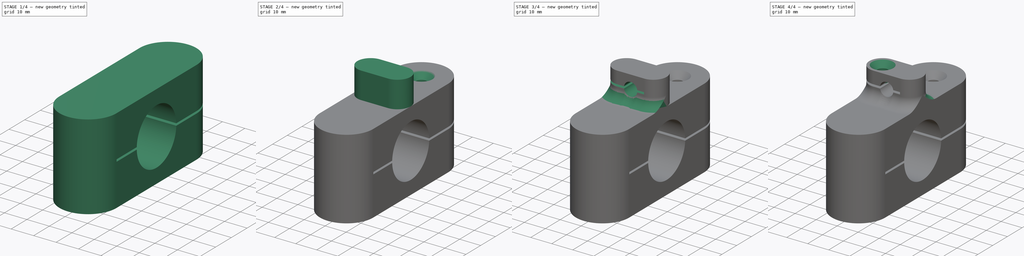
[diagram: build sequence overview — one tinted view per stage of 4, left to right]
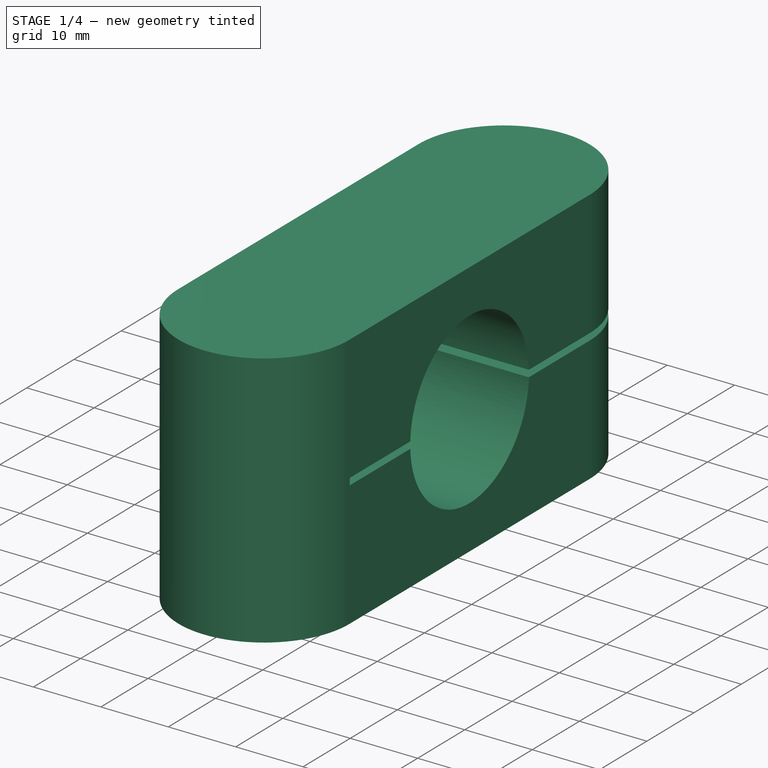
[diagram: stage 1 of 4 — iso view after this stage's code; geometry added in this stage tinted green]
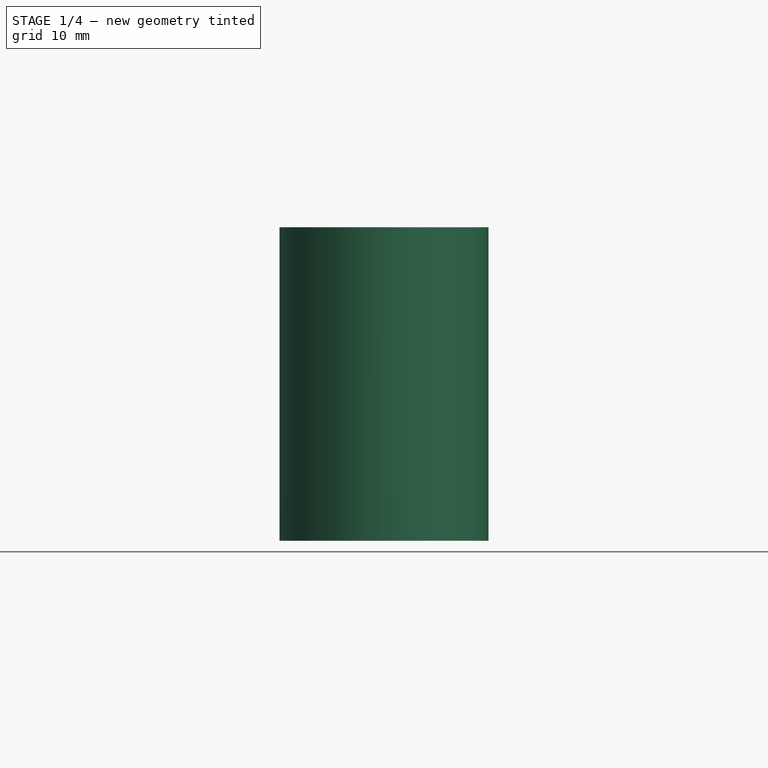
[diagram: stage 1 of 4 — front view after this stage's code; geometry added in this stage tinted green]
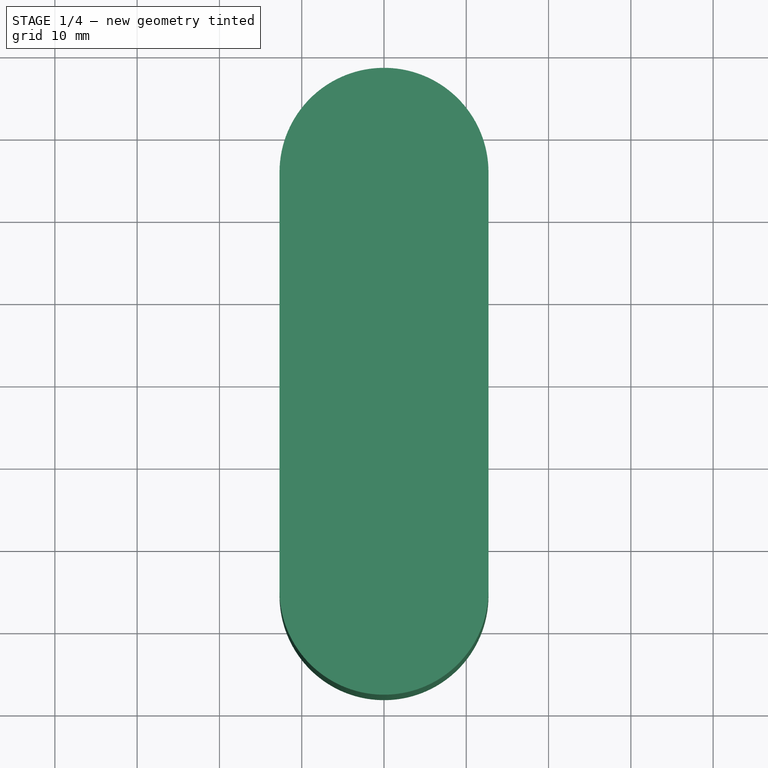
[diagram: stage 1 of 4 — top view after this stage's code; geometry added in this stage tinted green]
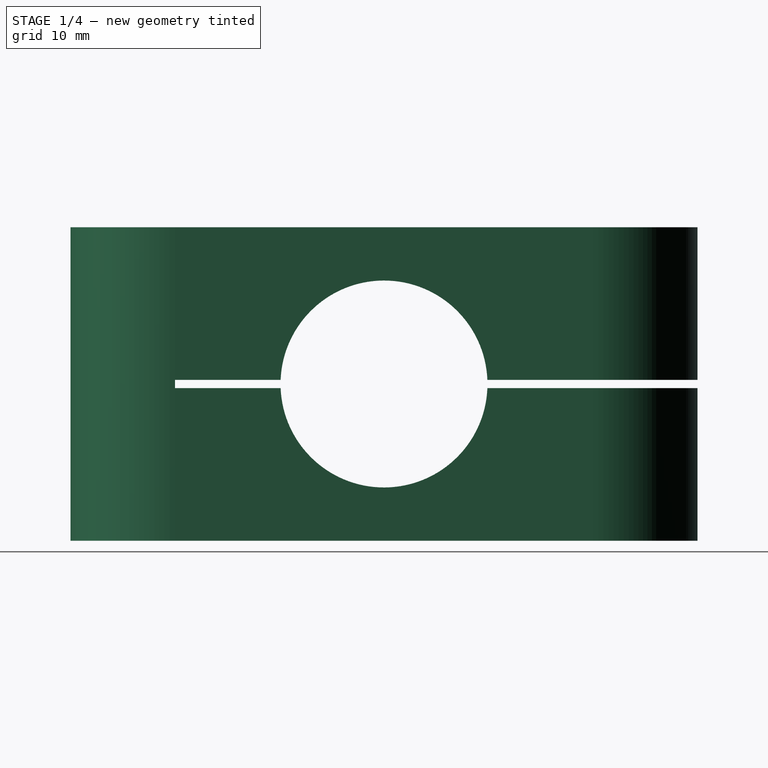
[diagram: stage 1 of 4 — right view after this stage's code; geometry added in this stage tinted green]
FCSTD DOCUMENT  (FreeCAD 0.19R24267 (Git))
Label: element_bracket
License: All rights reserved
LicenseURL: http://en.wikipedia.org/wiki/All_rights_reserved
objects: Sketcher::SketchObject×10, PartDesign::Pocket×6, PartDesign::Plane×4, PartDesign::Pad×2, PartDesign::Hole×2, PartDesign::Fillet×2, PartDesign::Body×1
note: 39 computed .brp shape members not serialized (recipe doc carries the construction recipe); baked Part::Feature solids carry a one-line shape summary decoded from their .brp

FEATURE [Sketcher::SketchObject] Sketch  label="large_dia_sketch"
  FullyConstrained = true
  MapMode = 5
  Support = -> [XY_Plane]
  sketch-geometry (8):
    g0: LineSegment StartX=-12.7 StartY=25.4 StartZ=0 EndX=-12.7 EndY=-25.4 EndZ=0
    g1: LineSegment StartX=12.7 StartY=25.4 StartZ=0 EndX=12.7 EndY=-25.4 EndZ=0
    g2: ArcOfCircle CenterX=0 CenterY=25.4 CenterZ=0 NormalX=0 NormalY=0 NormalZ=1 AngleXU=0 Radius=12.7 StartAngle=1.87333e-06 EndAngle=3.14159
    g3: ArcOfCircle CenterX=-5e-16 CenterY=-25.4 CenterZ=0 NormalX=0 NormalY=0 NormalZ=1 AngleXU=0 Radius=12.7 StartAngle=3.1416 EndAngle=6.28318
    g4: LineSegment StartX=-100.146 StartY=12.573 StartZ=0 EndX=-75 EndY=12.573 EndZ=0
    g5: LineSegment StartX=-75 StartY=12.573 StartZ=0 EndX=-75 EndY=-12.573 EndZ=0
    g6: LineSegment StartX=-75 StartY=-12.573 StartZ=0 EndX=-100.146 EndY=-12.573 EndZ=0
    g7: LineSegment StartX=-100.146 StartY=-12.573 StartZ=0 EndX=-100.146 EndY=12.573 EndZ=0
  constraints (23):
    c: Vertical(g0)
    c: Vertical(g1)
    c: Equal(g1,g0)
    c: Symmetric(g1,g0,g-1)
    c: PointOnObject(g2,g-2)
    c: Coincident(g2,g1)
    c: Coincident(g3,g1)
    c: Coincident(g3,g0)
    c: Equal(g2,g3)
    c: Tangent(g2,g0) = -1.5708
    c: DistanceX(g0,g1) = 25.4
    c: Coincident(g4,g5)
    c: Coincident(g5,g6)
    c: Coincident(g6,g7)
    c: Coincident(g7,g4)
    c: Horizontal(g4)
    c: Horizontal(g6)
    c: Vertical(g7)
    c: DistanceY(g5,g5) = 25.146
    c: Equal(g5,g4)
    c: Symmetric(g4,g5,g-1)
    c: DistanceX(g5,g-1) = 75
    c: DistanceY(g1,g1) = 50.8
FEATURE [PartDesign::Pad] Pad
  Direction = (1,1,1)
  Length = 38.1
  Length2 = 100
  Profile = -> Sketch
  Type = 0
FEATURE [PartDesign::Plane] DatumPlane
  Length = 91.1962
  MapMode = 5
  Placement = pos=(12.7,0,0) rot=(0.57735,0.57735,0.57735;2.0944rad)
  ResizeMode = 0
  Support = -> [Pad]
  Width = 90.9815
FEATURE [Sketcher::SketchObject] Sketch001
  ExternalGeometry = -> [Pad]
  FullyConstrained = true
  MapMode = 5
  Placement = pos=(12.7,0,0) rot=(0.57735,0.57735,0.57735;2.0944rad)
  Support = -> [DatumPlane]
  sketch-geometry (1):
    g0: Circle CenterX=1.18956e-05 CenterY=19.05 CenterZ=0 NormalX=0 NormalY=0 NormalZ=1 AngleXU=0 Radius=12.575
  constraints (2):
    c: Radius(g0) = 12.575
    c: Symmetric(g-3,g-4,g0)
FEATURE [PartDesign::Pocket] Pocket
  BaseFeature = -> Pad
  Length = 25.4
  Length2 = 100
  Profile = -> Sketch001
  Type = 0
FEATURE [PartDesign::Plane] DatumPlane001
  Length = 62.33
  MapMode = 5
  Placement = pos=(0,0,38.1) rot=(0,0,1;0rad)
  ResizeMode = 0
  Support = -> [Pocket]
  Width = 88.3448
FEATURE [Sketcher::SketchObject] Sketch002
  ExternalGeometry = -> [Pocket]
  FullyConstrained = true
  MapMode = 5
  Placement = pos=(12.7,0,0) rot=(0.57735,0.57735,0.57735;2.0944rad)
  Support = -> [DatumPlane]
  sketch-geometry (6):
    g0: LineSegment StartX=-25.4 StartY=19.55 StartZ=0 EndX=74.6 EndY=19.55 EndZ=0
    g1: LineSegment StartX=74.6 StartY=19.55 StartZ=0 EndX=74.6 EndY=18.55 EndZ=0
    g2: LineSegment StartX=74.6 StartY=18.55 StartZ=0 EndX=-25.4 EndY=18.55 EndZ=0
    g3: LineSegment StartX=-25.4 StartY=18.55 StartZ=0 EndX=-25.4 EndY=19.55 EndZ=0
    g4: LineSegment StartX=-25.4 StartY=19.55 StartZ=0 EndX=25.4 EndY=38.1 EndZ=0
    g5: LineSegment StartX=-25.4 StartY=18.55 StartZ=0 EndX=25.4 EndY=0 EndZ=0
  constraints (16):
    c: Coincident(g0,g1)
    c: Coincident(g1,g2)
    c: Coincident(g2,g3)
    c: Coincident(g3,g0)
    c: Horizontal(g0)
    c: Horizontal(g2)
    c: Vertical(g1)
    c: Vertical(g3)
    c: DistanceY(g1,g1) = 1
    c: Coincident(g0,g4)
    c: Coincident(g4,g-3)
    c: Coincident(g2,g5)
    c: Coincident(g5,g-3)
    c: Equal(g5,g4)
    c: DistanceX(g0,g0) = 100
    c: PointOnObject(g0,g-4)
FEATURE [PartDesign::Pocket] Pocket001
  BaseFeature = -> Pocket
  Length = 25.4
  Length2 = 100
  Profile = -> Sketch002
  Type = 0
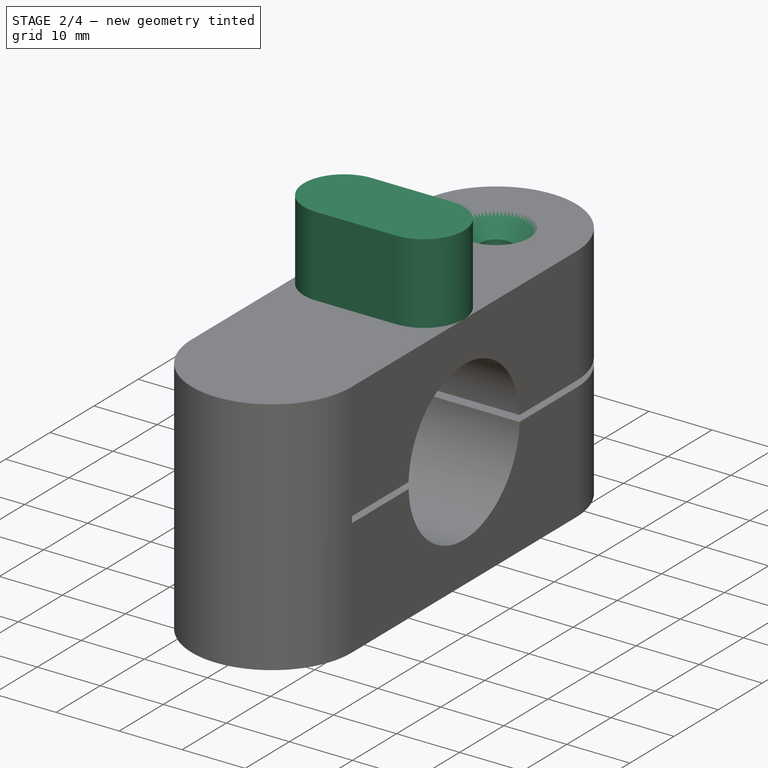
[diagram: stage 2 of 4 — iso view after this stage's code; geometry added in this stage tinted green]
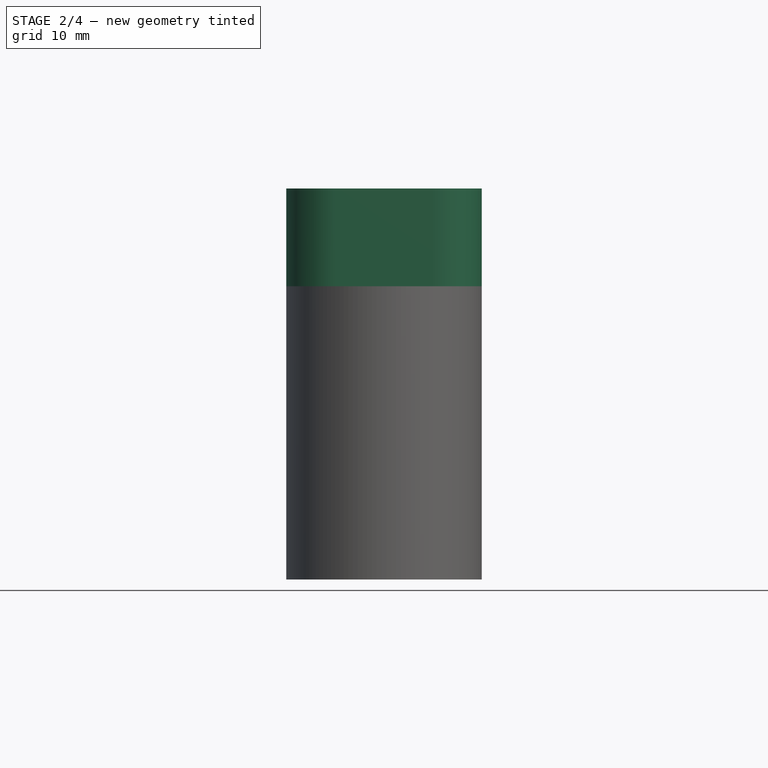
[diagram: stage 2 of 4 — front view after this stage's code; geometry added in this stage tinted green]
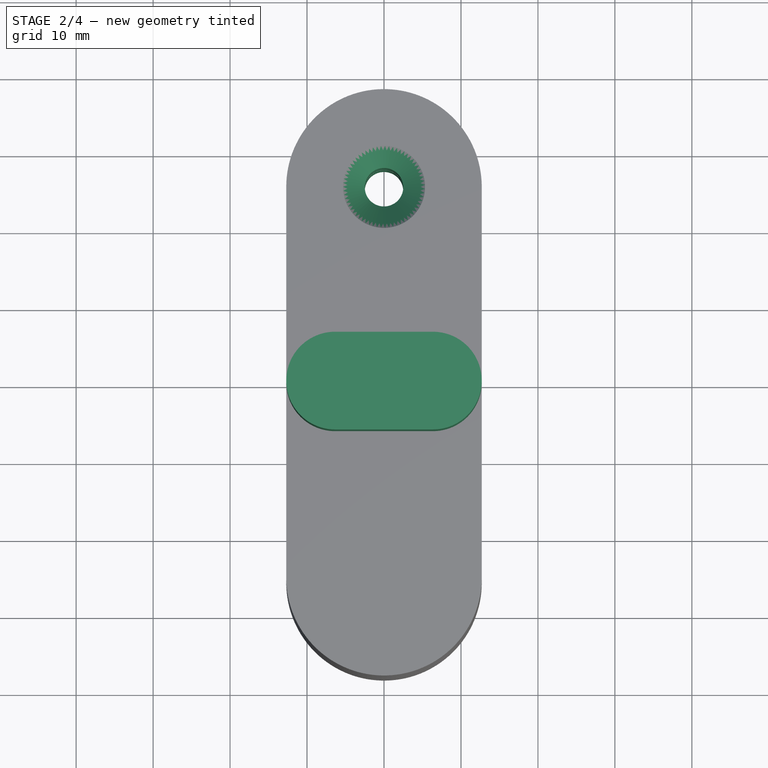
[diagram: stage 2 of 4 — top view after this stage's code; geometry added in this stage tinted green]
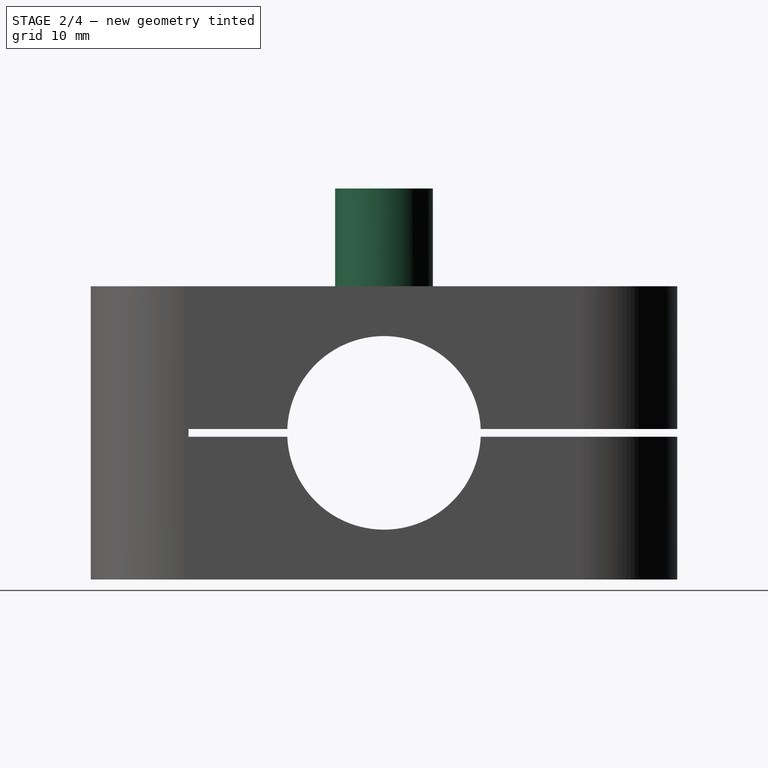
[diagram: stage 2 of 4 — right view after this stage's code; geometry added in this stage tinted green]
FEATURE [Sketcher::SketchObject] Sketch003
  ExternalGeometry = -> [Pocket001]
  FullyConstrained = true
  MapMode = 5
  Placement = pos=(0,0,38.1) rot=(0,0,1;0rad)
  Support = -> [DatumPlane001]
  sketch-geometry (1):
    g0: Circle CenterX=0 CenterY=25.4 CenterZ=0 NormalX=0 NormalY=0 NormalZ=1 AngleXU=0 Radius=5
  constraints (2):
    c: Radius(g0) = 5
    c: Coincident(g-4,g0)
FEATURE [PartDesign::Hole] Hole
  BaseFeature = -> Pocket001
  Depth = 25
  DepthType = 1
  Diameter = 5
  DrillForDepth = false
  DrillPoint = 1
  DrillPointAngle = 118
  HoleCutCountersinkAngle = 90
  HoleCutCustomValues = false
  HoleCutDepth = 2
  HoleCutDiameter = 10.67
  HoleCutType = 2
  ModelActualThread = false
  Profile = -> Sketch003
  Tapered = false
  TaperedAngle = 90
  ThreadAngle = 60
  ThreadClass = 0
  ThreadCutOffInner = 0.0343163
  ThreadCutOffOuter = 0.0686325
  ThreadDirection = 0
  ThreadFit = 0
  ThreadPitch = 0.317
  ThreadSize = 7
  ThreadType = 4
  Threaded = false
FEATURE [PartDesign::Plane] DatumPlane002
  Length = 62.33
  MapMode = 5
  Placement = pos=(0,0,0) rot=(1,0,0;3.14159rad)
  ResizeMode = 0
  Support = -> [Hole]
  Width = 88.3448
FEATURE [Sketcher::SketchObject] Sketch004
  ExternalGeometry = -> [Hole]
  FullyConstrained = true
  MapMode = 5
  Placement = pos=(0,0,0) rot=(1,0,0;3.14159rad)
  Support = -> [DatumPlane002]
  sketch-geometry (7):
    g0: LineSegment StartX=0 StartY=-20.2038 StartZ=0 EndX=-4.5 EndY=-22.8019 EndZ=0
    g1: LineSegment StartX=-4.5 StartY=-22.8019 StartZ=0 EndX=-4.5 EndY=-27.9981 EndZ=0
    g2: LineSegment StartX=-4.5 StartY=-27.9981 StartZ=0 EndX=0 EndY=-30.5961 EndZ=0
    g3: LineSegment StartX=0 StartY=-30.5961 StartZ=0 EndX=4.5 EndY=-27.9981 EndZ=0
    g4: LineSegment StartX=4.5 StartY=-27.9981 StartZ=0 EndX=4.5 EndY=-22.8019 EndZ=0
    g5: LineSegment StartX=4.5 StartY=-22.8019 StartZ=0 EndX=0 EndY=-20.2038 EndZ=0
    g6: Circle CenterX=0 CenterY=-25.4 CenterZ=0 NormalX=0 NormalY=0 NormalZ=1 AngleXU=0 Radius=5.19615
  constraints (16):
    c: Coincident(g0,g1)
    c: Coincident(g1,g2)
    c: Coincident(g2,g3)
    c: Coincident(g3,g4)
    c: Coincident(g4,g5)
    c: Coincident(g5,g0)
    c: Equal(g0, g1-g5) x5
    c: PointOnObject(g0,g6)
    c: PointOnObject(g1,g6)
    c: PointOnObject(g2,g6)
    c: PointOnObject(g3,g6)
    c: PointOnObject(g4,g6)
    c: PointOnObject(g5,g6)
    c: Coincident(g6,g-3)
    c: PointOnObject(g5,g-2)
    c: DistanceX(g0,g4) = 9
FEATURE [PartDesign::Pocket] Pocket002
  BaseFeature = -> Hole
  Length = 5
  Length2 = 100
  Profile = -> Sketch004
  Type = 0
FEATURE [Sketcher::SketchObject] Sketch005
  ExternalGeometry = -> [Hole]
  FullyConstrained = true
  MapMode = 5
  Placement = pos=(0,0,38.1) rot=(0,0,1;0rad)
  Support = -> [DatumPlane001]
  sketch-geometry (6):
    g0: LineSegment StartX=-6.35 StartY=6.35 StartZ=0 EndX=6.35 EndY=6.35 EndZ=0
    g1: LineSegment StartX=-6.35 StartY=-6.35 StartZ=0 EndX=6.35 EndY=-6.35 EndZ=0
    g2: LineSegment StartX=-12.7 StartY=25.4 StartZ=0 EndX=6.35 EndY=6.35 EndZ=0
    g3: LineSegment StartX=12.7 StartY=-25.4 StartZ=0 EndX=-6.35 EndY=-6.35 EndZ=0
    g4: ArcOfCircle CenterX=-6.35 CenterY=0 CenterZ=0 NormalX=0 NormalY=0 NormalZ=1 AngleXU=0 Radius=6.35 StartAngle=1.5708 EndAngle=4.71239
    g5: ArcOfCircle CenterX=6.35 CenterY=-3e-16 CenterZ=0 NormalX=0 NormalY=0 NormalZ=1 AngleXU=0 Radius=6.35 StartAngle=4.71239 EndAngle=7.85398
  constraints (16):
    c: Horizontal(g0)
    c: Horizontal(g1)
    c: Equal(g1,g0)
    c: Vertical(g0,g1)
    c: DistanceY(g1,g0) = 12.7
    c: Coincident(g-4,g2)
    c: Coincident(g2,g0)
    c: Coincident(g-3,g3)
    c: Coincident(g3,g1)
    c: Coincident(g4,g1)
    c: Coincident(g5,g1)
    c: Tangent(g5,g0) = 1.5708
    c: Tangent(g4,g0) = 1.5708
    c: DistanceX(g0,g0) = 12.7
    c: Equal(g2,g3)
    c: PointOnObject(g4,g-1)
FEATURE [PartDesign::Pad] Pad001
  BaseFeature = -> Pocket002
  Direction = (1,1,1)
  Length = 12.7
  Length2 = 100
  Profile = -> Sketch005
  Type = 0
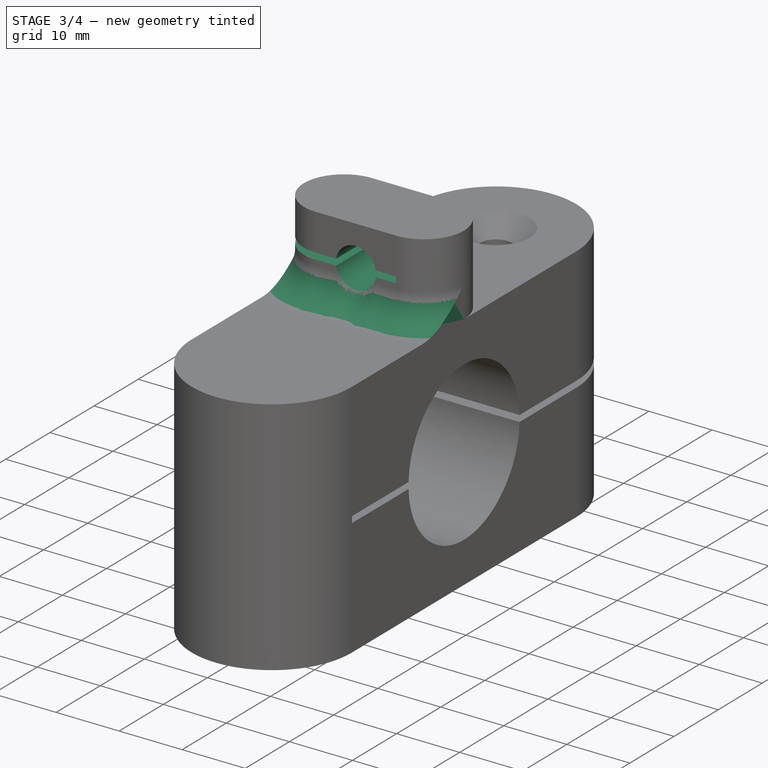
[diagram: stage 3 of 4 — iso view after this stage's code; geometry added in this stage tinted green]
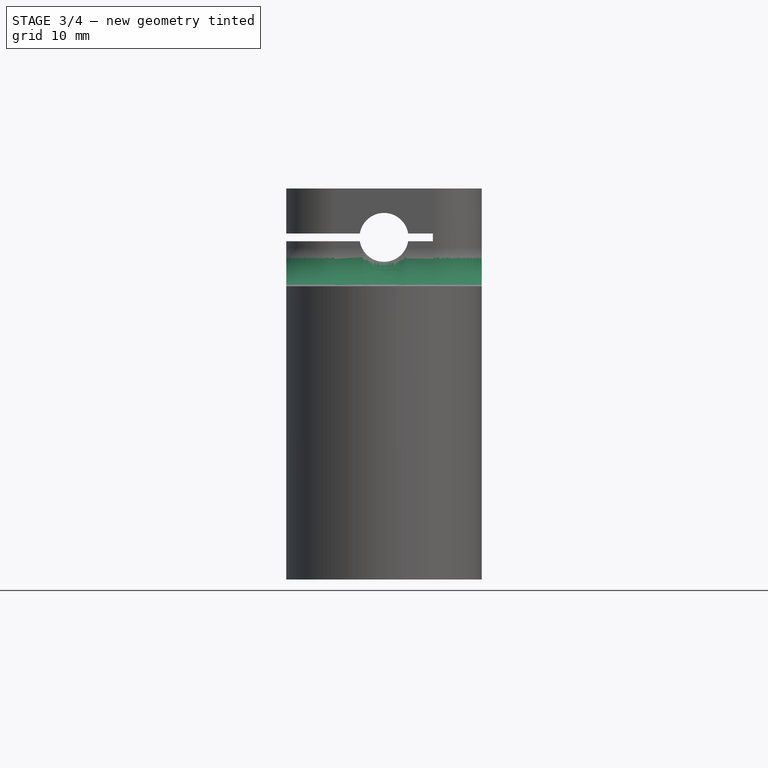
[diagram: stage 3 of 4 — front view after this stage's code; geometry added in this stage tinted green]
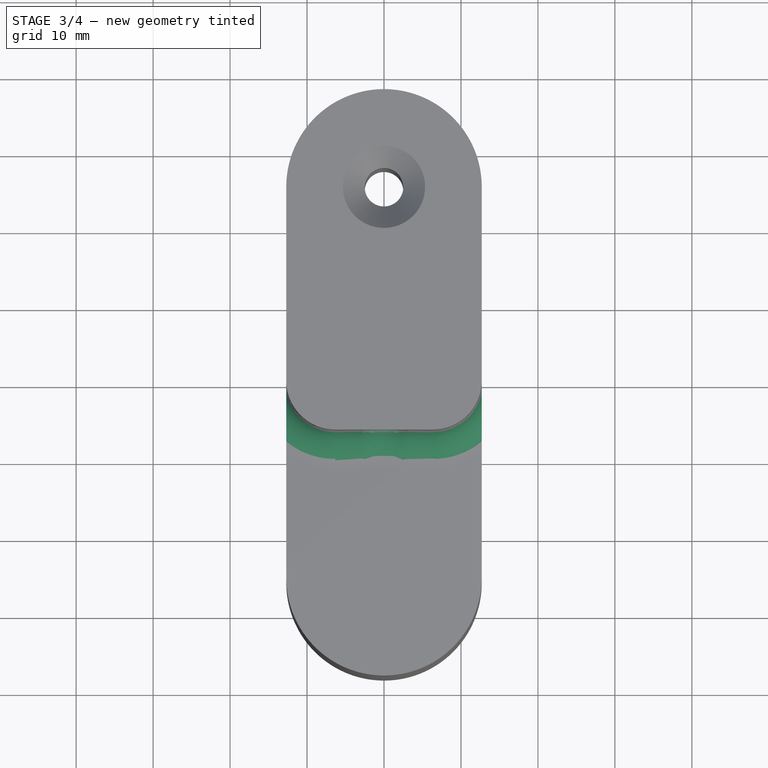
[diagram: stage 3 of 4 — top view after this stage's code; geometry added in this stage tinted green]
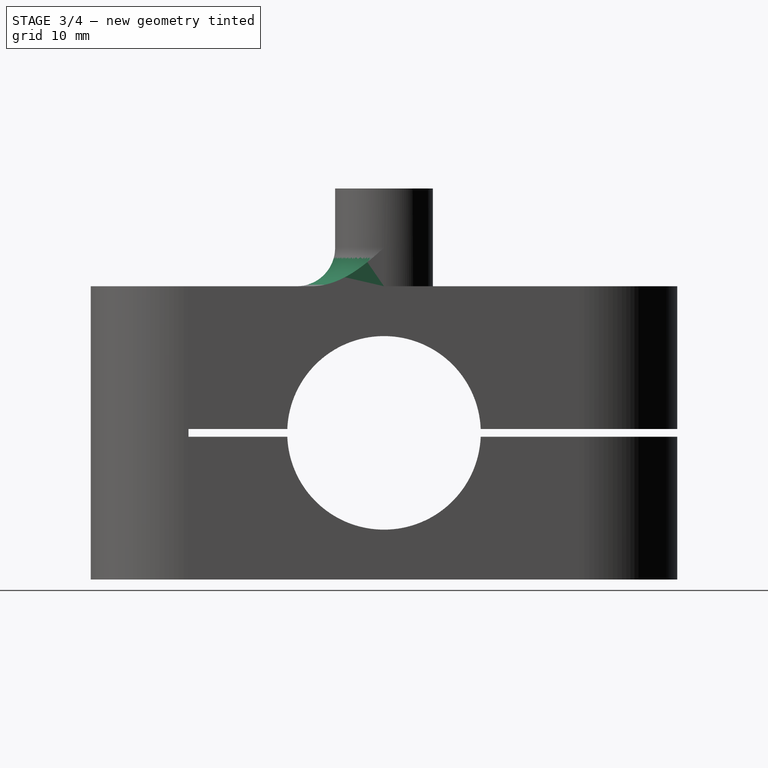
[diagram: stage 3 of 4 — right view after this stage's code; geometry added in this stage tinted green]
FEATURE [PartDesign::Plane] DatumPlane003
  Length = 62.3126
  MapMode = 5
  Placement = pos=(0,-6.35,0) rot=(1,0,0;1.5708rad)
  ResizeMode = 0
  Support = -> [Pad001]
  Width = 88.1126
FEATURE [Sketcher::SketchObject] Sketch006
  ExternalGeometry = -> [Pad001]
  FullyConstrained = true
  MapMode = 5
  Placement = pos=(0,-6.35,0) rot=(1,0,0;1.5708rad)
  Support = -> [DatumPlane003]
  sketch-geometry (1):
    g0: Circle CenterX=8.8771e-12 CenterY=44.45 CenterZ=0 NormalX=0 NormalY=0 NormalZ=1 AngleXU=0 Radius=3.175
  constraints (2):
    c: Radius(g0) = 3.175
    c: Symmetric(g-3,g-4,g0)
FEATURE [PartDesign::Pocket] Pocket003
  BaseFeature = -> Pad001
  Length = 12.7
  Length2 = 100
  Profile = -> Sketch006
  Type = 0
FEATURE [Sketcher::SketchObject] Sketch007
  ExternalGeometry = -> [Pocket003]
  FullyConstrained = true
  MapMode = 5
  Placement = pos=(0,-6.35,0) rot=(1,0,0;1.5708rad)
  Support = -> [DatumPlane003]
  sketch-geometry (6):
    g0: LineSegment StartX=-13.65 StartY=44.95 StartZ=0 EndX=6.35 EndY=44.95 EndZ=0
    g1: LineSegment StartX=6.35 StartY=44.95 StartZ=0 EndX=6.35 EndY=43.95 EndZ=0
    g2: LineSegment StartX=6.35 StartY=43.95 StartZ=0 EndX=-13.65 EndY=43.95 EndZ=0
    g3: LineSegment StartX=-13.65 StartY=43.95 StartZ=0 EndX=-13.65 EndY=44.95 EndZ=0
    g4: LineSegment StartX=-6.35 StartY=50.8 StartZ=0 EndX=6.35 EndY=44.95 EndZ=0
    g5: LineSegment StartX=6.35 StartY=43.95 StartZ=0 EndX=-6.35 EndY=38.1 EndZ=0
  constraints (16):
    c: Coincident(g0,g1)
    c: Coincident(g1,g2)
    c: Coincident(g2,g3)
    c: Coincident(g3,g0)
    c: Horizontal(g0)
    c: Horizontal(g2)
    c: Vertical(g1)
    c: Vertical(g3)
    c: PointOnObject(g1,g-3)
    c: DistanceY(g3,g3) = 1
    c: DistanceX(g0,g0) = 20
    c: Coincident(g-4,g4)
    c: Coincident(g4,g0)
    c: Coincident(g1,g5)
    c: Coincident(g5,g-4)
    c: Equal(g5,g4)
FEATURE [PartDesign::Pocket] Pocket004
  BaseFeature = -> Pocket003
  Length = 12.7
  Length2 = 100
  Profile = -> Sketch007
  Type = 0
FEATURE [PartDesign::Fillet] Fillet
  Base = -> Pocket004 [Edge54]
  BaseFeature = -> Pocket004
  Radius = 5
  SupportTransform = false
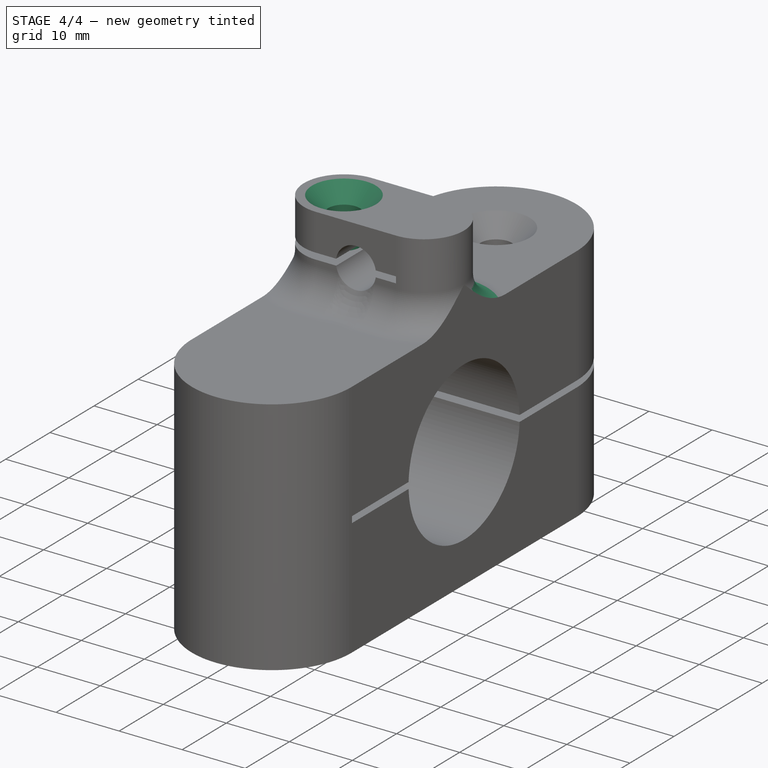
[diagram: stage 4 of 4 — iso view after this stage's code; geometry added in this stage tinted green]
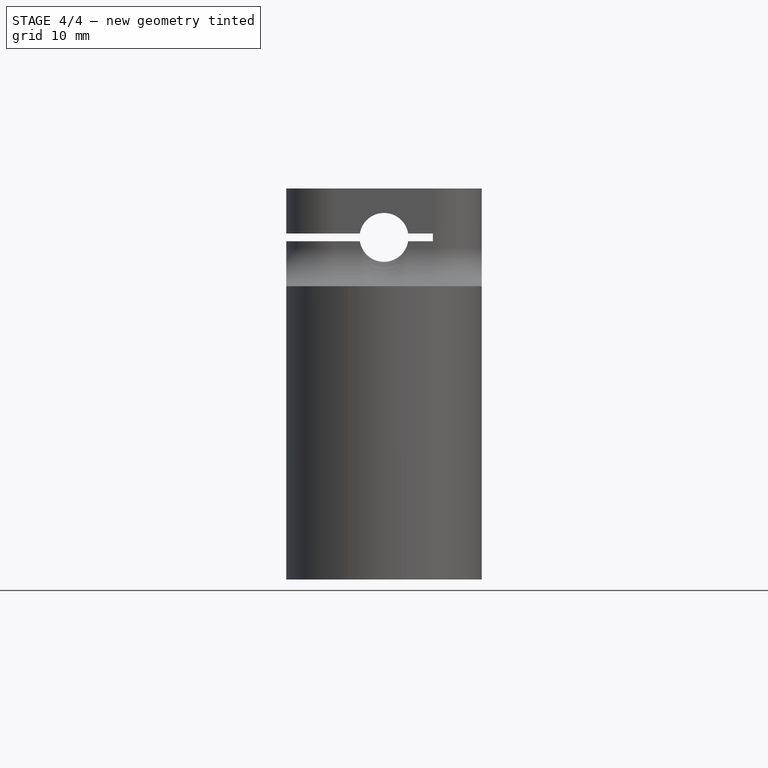
[diagram: stage 4 of 4 — front view after this stage's code; geometry added in this stage tinted green]
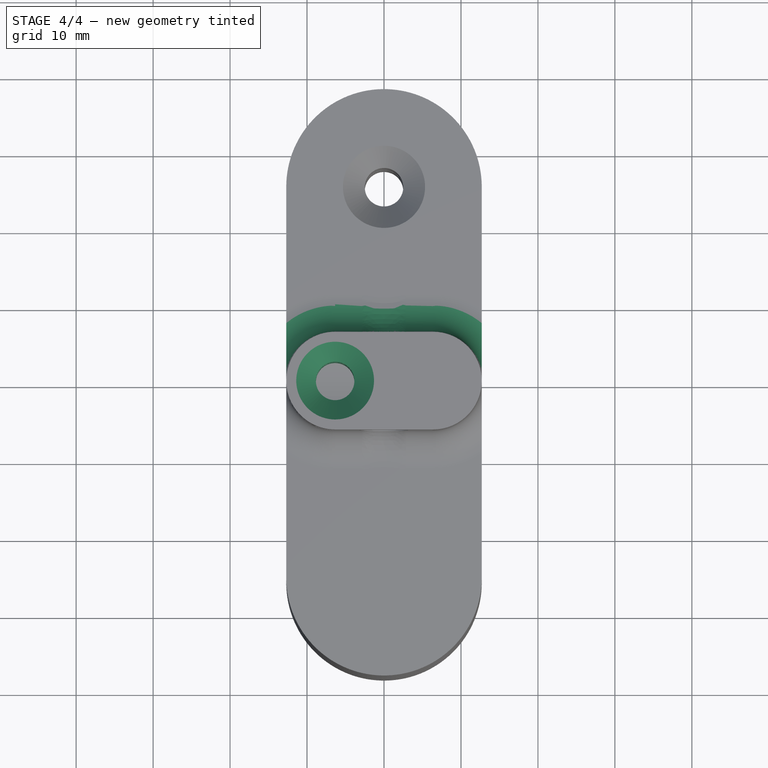
[diagram: stage 4 of 4 — top view after this stage's code; geometry added in this stage tinted green]
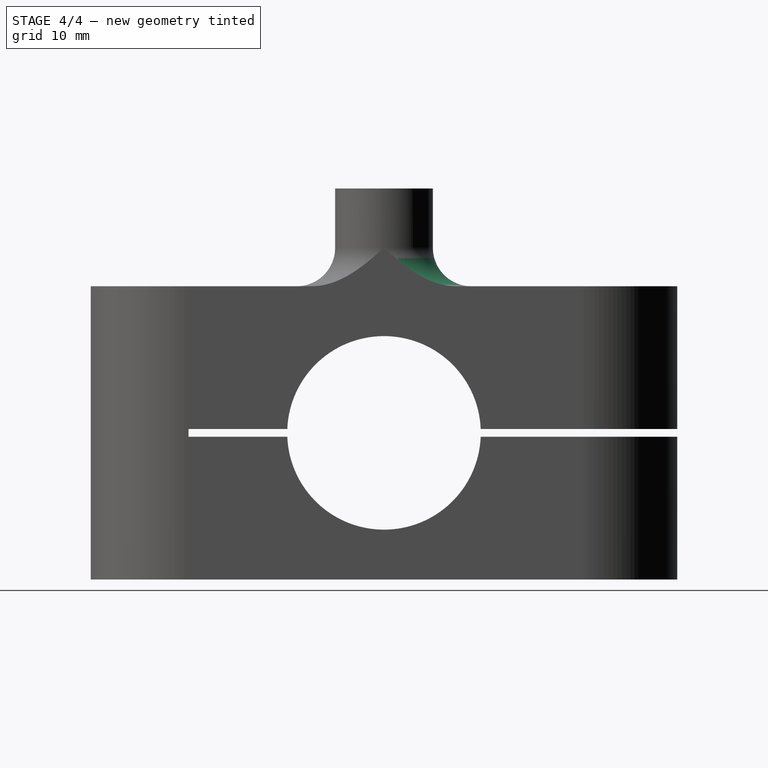
[diagram: stage 4 of 4 — right view after this stage's code; geometry added in this stage tinted green]
FEATURE [PartDesign::Fillet] Fillet001
  Base = -> Fillet [Edge43]
  BaseFeature = -> Fillet
  Radius = 5
  SupportTransform = false
FEATURE [Sketcher::SketchObject] Sketch008
  ExternalGeometry = -> [Fillet001]
  FullyConstrained = true
  MapMode = 5
  Placement = pos=(0,0,50.8) rot=(0,0,1;0rad)
  Support = -> [Fillet001]
  sketch-geometry (1):
    g0: Circle CenterX=-6.35 CenterY=0 CenterZ=0 NormalX=0 NormalY=0 NormalZ=1 AngleXU=0 Radius=2.5
  constraints (2):
    c: Coincident(g0,g-3)
    c: Radius(g0) = 2.5
FEATURE [Sketcher::SketchObject] Sketch009
  ExternalGeometry = -> [Fillet001]
  FullyConstrained = true
  MapMode = 5
  Placement = pos=(0,0,38.1) rot=(0,0,1;0rad)
  Support = -> [DatumPlane001]
  sketch-geometry (7):
    g0: LineSegment StartX=-11.5462 StartY=0 StartZ=0 EndX=-8.94808 EndY=-4.5 EndZ=0
    g1: LineSegment StartX=-8.94808 StartY=-4.5 StartZ=0 EndX=-3.75192 EndY=-4.5 EndZ=0
    g2: LineSegment StartX=-3.75192 StartY=-4.5 StartZ=0 EndX=-1.15385 EndY=0 EndZ=0
    g3: LineSegment StartX=-1.15385 StartY=0 StartZ=0 EndX=-3.75192 EndY=4.5 EndZ=0
    g4: LineSegment StartX=-3.75192 StartY=4.5 StartZ=0 EndX=-8.94808 EndY=4.5 EndZ=0
    g5: LineSegment StartX=-8.94808 StartY=4.5 StartZ=0 EndX=-11.5462 EndY=0 EndZ=0
    g6: Circle CenterX=-6.35 CenterY=0 CenterZ=0 NormalX=0 NormalY=0 NormalZ=1 AngleXU=0 Radius=5.19615
  constraints (16):
    c: Coincident(g0,g1)
    c: Coincident(g1,g2)
    c: Coincident(g2,g3)
    c: Coincident(g3,g4)
    c: Coincident(g4,g5)
    c: Coincident(g5,g0)
    c: Equal(g0, g1-g5) x5
    c: PointOnObject(g0,g6)
    c: PointOnObject(g1,g6)
    c: PointOnObject(g2,g6)
    c: PointOnObject(g3,g6)
    c: PointOnObject(g4,g6)
    c: PointOnObject(g5,g6)
    c: Coincident(g6,g-3)
    c: PointOnObject(g5,g-1)
    c: DistanceY(g0,g4) = 9
FEATURE [PartDesign::Hole] Hole001
  BaseFeature = -> Fillet001
  Depth = 25
  DepthType = 0
  Diameter = 5
  DrillForDepth = false
  DrillPoint = 1
  DrillPointAngle = 118
  HoleCutCountersinkAngle = 90
  HoleCutCustomValues = false
  HoleCutDepth = 2
  HoleCutDiameter = 10.1
  HoleCutType = 2
  ModelActualThread = false
  Profile = -> Sketch008
  Tapered = false
  TaperedAngle = 90
  ThreadAngle = 0
  ThreadClass = 0
  ThreadCutOffInner = 0
  ThreadCutOffOuter = 0
  ThreadDirection = 0
  ThreadFit = 0
  ThreadPitch = 0
  ThreadSize = 7
  ThreadType = 4
  Threaded = false
FEATURE [PartDesign::Pocket] Pocket005
  BaseFeature = -> Hole001
  Length = 15
  Length2 = 100
  Profile = -> Sketch009
  Type = 0
FEATURE [PartDesign::Body] Body
  Group = -> [Sketch,Pad,DatumPlane,Sketch001,Pocket,DatumPlane001,Sketch002,Pocket001,Sketch003,Hole,DatumPlane002,Sketch004,Pocket002,Sketch005,Pad001,DatumPlane003,Sketch006,Pocket003,Sketch007,Pocket004,Fillet,Fillet001,Sketch008,Sketch009,Hole001,Pocket005]
  Origin = -> Origin
  Tip = -> Pocket005
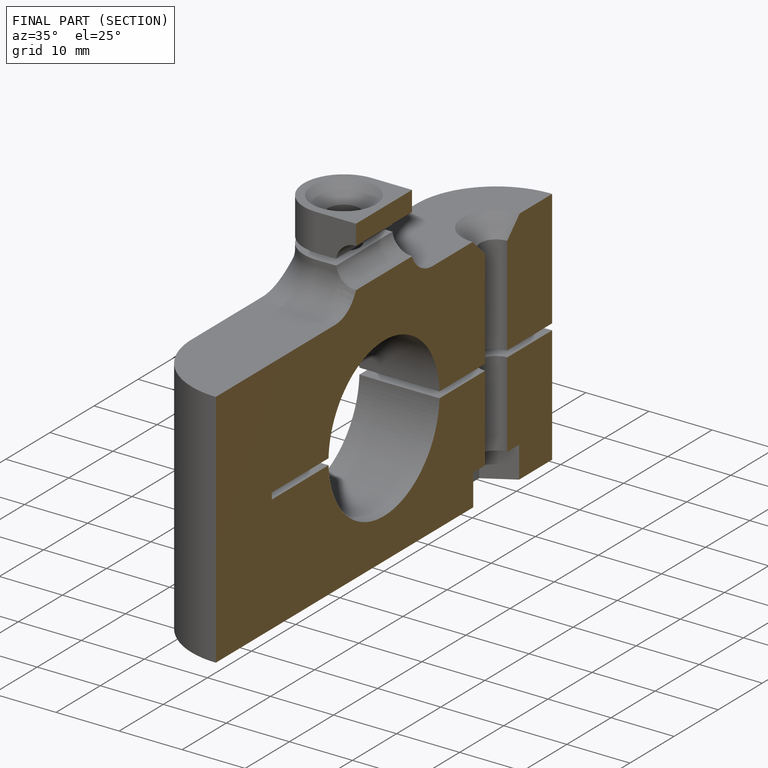
[diagram: finished part — half-section view (interior)]
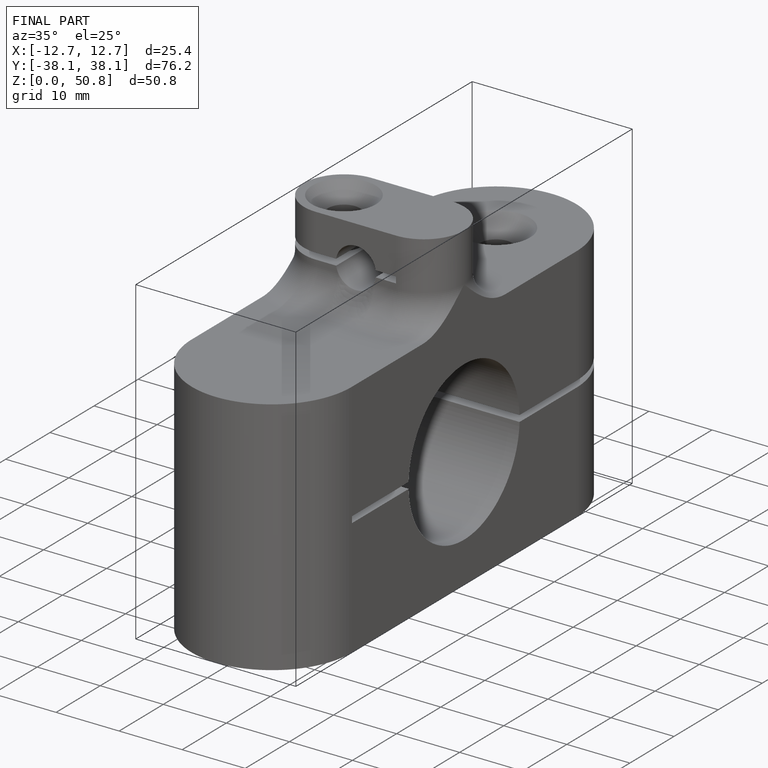
[diagram: finished part — iso view with bounding-box wireframe]
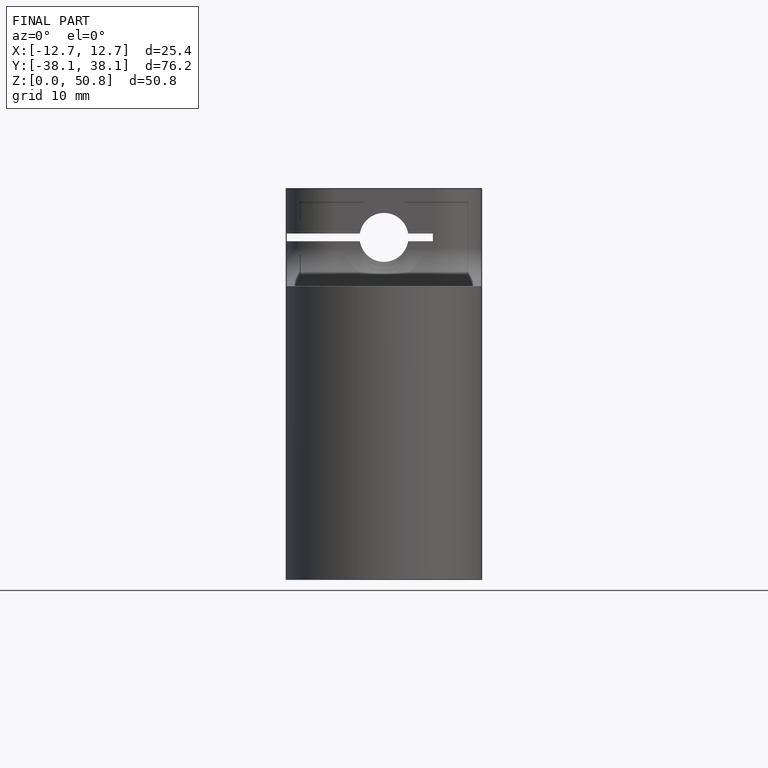
[diagram: finished part — front view with bounding-box wireframe]
